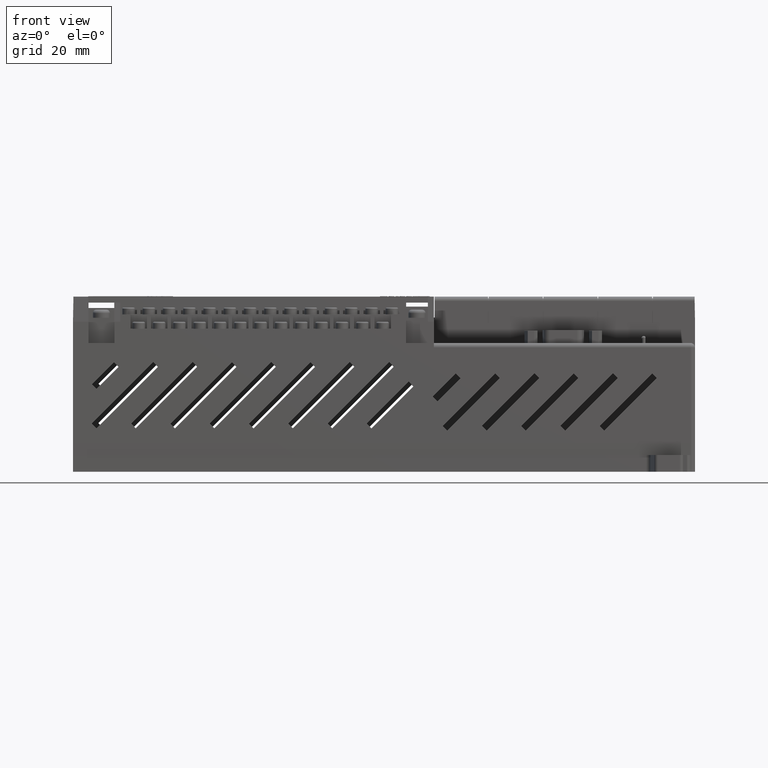
[diagram: clean part render]
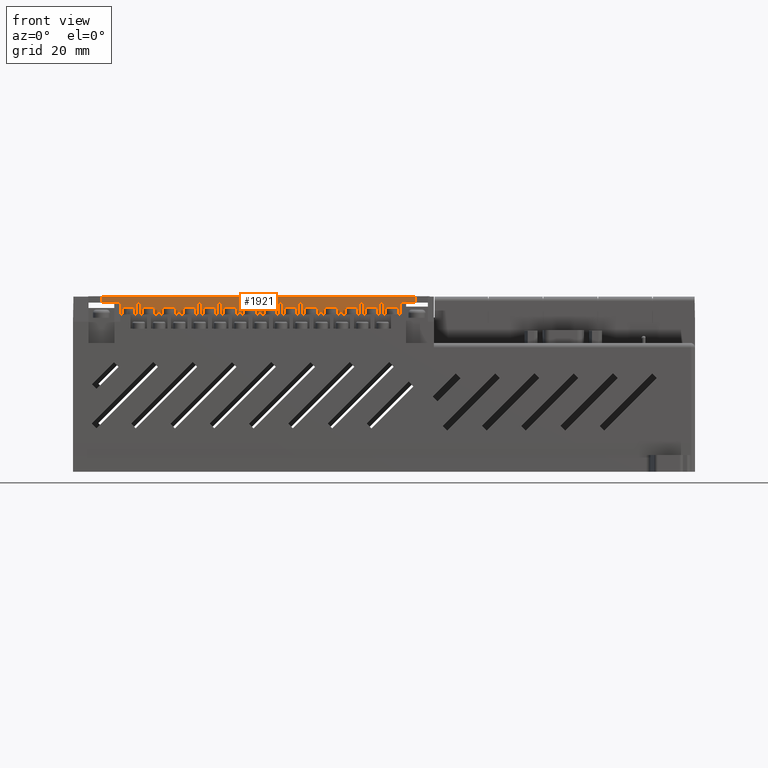
[diagram: same view with one face highlighted and labeled with its STEP entity id]
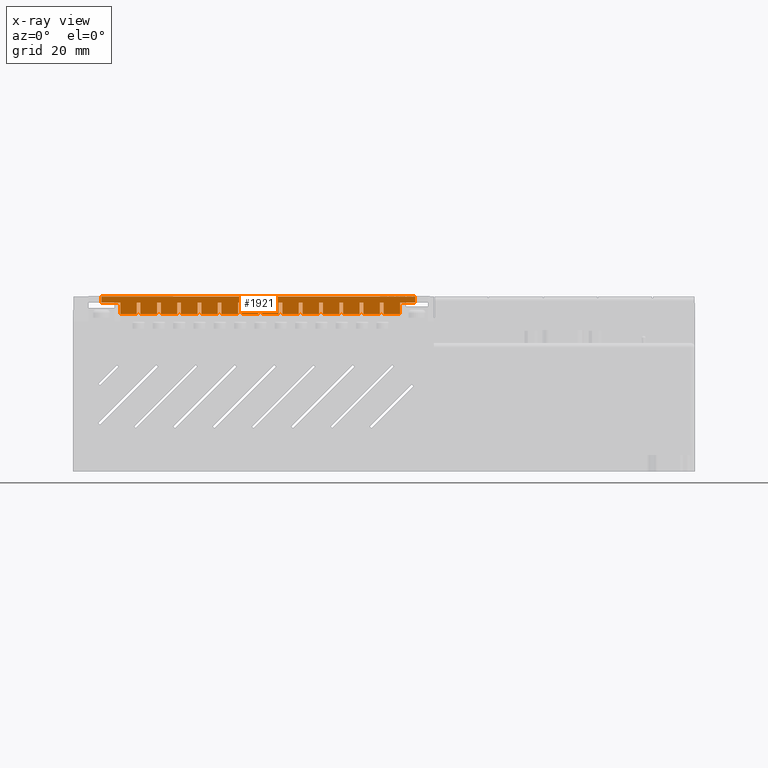
[diagram: x-ray of the same camera — body ghosted, the highlighted face saturated]
A machine part, front view. The second image highlights one B-rep face of the part: STEP entity #1921.
The next image is the same camera in x-ray: the body ghosted, the highlighted face saturated — about 0% of this face is hidden behind the body in this view.
In plain terms, the highlighted planar face has unit normal (-0, 1, 0).
Its self-contained STEP definition (entity closure, byte-faithful):
#450 = VERTEX_POINT ( 'NONE', #8870 ) ;
#454 = EDGE_CURVE ( 'NONE', #457, #450, #8869, .T. ) ;
#457 = VERTEX_POINT ( 'NONE', #8865 ) ;
#1873 = ORIENTED_EDGE ( 'NONE', *, *, #60422, .T. ) ;
#1875 = ORIENTED_EDGE ( 'NONE', *, *, #1876, .F. ) ;
#1876 = EDGE_CURVE ( 'NONE', #1878, #60275, #12679, .T. ) ;
#1878 = VERTEX_POINT ( 'NONE', #12671 ) ;
#1879 = ORIENTED_EDGE ( 'NONE', *, *, #1880, .F. ) ;
#1880 = EDGE_CURVE ( 'NONE', #1882, #1878, #12669, .T. ) ;
#1882 = VERTEX_POINT ( 'NONE', #12793 ) ;
#1883 = EDGE_CURVE ( 'NONE', #60700, #1884, #12792, .T. ) ;
#1884 = VERTEX_POINT ( 'NONE', #12787 ) ;
#1886 = ORIENTED_EDGE ( 'NONE', *, *, #1887, .F. ) ;
#1887 = EDGE_CURVE ( 'NONE', #1888, #1884, #12783, .T. ) ;
#1888 = VERTEX_POINT ( 'NONE', #12775 ) ;
#1890 = ORIENTED_EDGE ( 'NONE', *, *, #1891, .F. ) ;
#1891 = EDGE_CURVE ( 'NONE', #1893, #1888, #12770, .T. ) ;
#1893 = VERTEX_POINT ( 'NONE', #12762 ) ;
#1894 = ORIENTED_EDGE ( 'NONE', *, *, #1895, .T. ) ;
#1895 = EDGE_CURVE ( 'NONE', #1893, #457, #12757, .T. ) ;
#1897 = ORIENTED_EDGE ( 'NONE', *, *, #454, .T. ) ;
#1899 = ORIENTED_EDGE ( 'NONE', *, *, #1901, .F. ) ;
#1901 = EDGE_CURVE ( 'NONE', #1902, #450, #12744, .T. ) ;
#1902 = VERTEX_POINT ( 'NONE', #12868 ) ;
#1904 = ORIENTED_EDGE ( 'NONE', *, *, #2003, .F. ) ;
#1921 = ADVANCED_FACE ( 'NONE', ( #12843 ), #12933, .F. ) ;
#1925 = EDGE_LOOP ( 'NONE', ( #1927, #1932, #1933, #1886, #1890, #1894, #1897, #1899, #1904, #2005, #2008, #1873, #1875, #1879, #1980, #1982, #1983, #1988, #1995, #1998, #1999, #1961, #1969, #1972, #1974, #1977, #69047, #2077, #2082, #1945, #1949, #1952, #1953, #2049, #2054, #2060, #2061, #2070, #2024, #2027, #2028, #2034, #2039, #2042, #2044, #2144, #2010, #2013, #2015, #2021, #2126, #2130, #2131, #2136, #2140, #2142, #2216, #2096, #2106, #2111, #2116, #2120 ) ) ;
#1927 = ORIENTED_EDGE ( 'NONE', *, *, #1928, .F. ) ;
#1928 = EDGE_CURVE ( 'NONE', #61571, #1930, #12921, .T. ) ;
#1930 = VERTEX_POINT ( 'NONE', #12916 ) ;
#1932 = ORIENTED_EDGE ( 'NONE', *, *, #60789, .T. ) ;
#1933 = ORIENTED_EDGE ( 'NONE', *, *, #1883, .T. ) ;
#1943 = VERTEX_POINT ( 'NONE', #12966 ) ;
#1945 = ORIENTED_EDGE ( 'NONE', *, *, #1946, .F. ) ;
#1946 = EDGE_CURVE ( 'NONE', #1947, #1943, #12955, .T. ) ;
#1947 = VERTEX_POINT ( 'NONE', #12950 ) ;
#1949 = ORIENTED_EDGE ( 'NONE', *, *, #1950, .F. ) ;
#1950 = EDGE_CURVE ( 'NONE', #24798, #1947, #12947, .T. ) ;
#1952 = ORIENTED_EDGE ( 'NONE', *, *, #55505, .T. ) ;
#1953 = ORIENTED_EDGE ( 'NONE', *, *, #1954, .F. ) ;
#1954 = EDGE_CURVE ( 'NONE', #1956, #24869, #12937, .T. ) ;
#1956 = VERTEX_POINT ( 'NONE', #13052 ) ;
#1959 = VERTEX_POINT ( 'NONE', #13051 ) ;
#1961 = ORIENTED_EDGE ( 'NONE', *, *, #1964, .F. ) ;
#1964 = EDGE_CURVE ( 'NONE', #1967, #1959, #13048, .T. ) ;
#1967 = VERTEX_POINT ( 'NONE', #13043 ) ;
#1969 = ORIENTED_EDGE ( 'NONE', *, *, #1971, .F. ) ;
#1971 = EDGE_CURVE ( 'NONE', #60225, #1967, #13042, .T. ) ;
#1972 = ORIENTED_EDGE ( 'NONE', *, *, #60236, .T. ) ;
#1974 = ORIENTED_EDGE ( 'NONE', *, *, #1975, .F. ) ;
#1975 = EDGE_CURVE ( 'NONE', #1976, #60181, #13025, .T. ) ;
#1976 = VERTEX_POINT ( 'NONE', #13016 ) ;
#1977 = ORIENTED_EDGE ( 'NONE', *, *, #1978, .F. ) ;
#1978 = EDGE_CURVE ( 'NONE', #1979, #1976, #13011, .T. ) ;
#1979 = VERTEX_POINT ( 'NONE', #13004 ) ;
#1980 = ORIENTED_EDGE ( 'NONE', *, *, #1981, .F. ) ;
#1981 = EDGE_CURVE ( 'NONE', #60344, #1882, #13001, .T. ) ;
#1982 = ORIENTED_EDGE ( 'NONE', *, *, #60257, .T. ) ;
#1983 = ORIENTED_EDGE ( 'NONE', *, *, #1984, .F. ) ;
#1984 = EDGE_CURVE ( 'NONE', #1987, #60343, #13002, .T. ) ;
#1987 = VERTEX_POINT ( 'NONE', #13101 ) ;
#1988 = ORIENTED_EDGE ( 'NONE', *, *, #1991, .F. ) ;
#1991 = EDGE_CURVE ( 'NONE', #1993, #1987, #13096, .T. ) ;
#1993 = VERTEX_POINT ( 'NONE', #13092 ) ;
#1995 = ORIENTED_EDGE ( 'NONE', *, *, #1997, .F. ) ;
#1997 = EDGE_CURVE ( 'NONE', #60253, #1993, #13091, .T. ) ;
#1998 = ORIENTED_EDGE ( 'NONE', *, *, #60307, .T. ) ;
#1999 = ORIENTED_EDGE ( 'NONE', *, *, #2001, .F. ) ;
#2001 = EDGE_CURVE ( 'NONE', #1959, #51511, #13081, .T. ) ;
#2003 = EDGE_CURVE ( 'NONE', #2004, #1902, #13168, .T. ) ;
#2004 = VERTEX_POINT ( 'NONE', #13162 ) ;
#2005 = ORIENTED_EDGE ( 'NONE', *, *, #2007, .F. ) ;
#2007 = EDGE_CURVE ( 'NONE', #5278, #2004, #13160, .T. ) ;
#2008 = ORIENTED_EDGE ( 'NONE', *, *, #5225, .F. ) ;
#2010 = ORIENTED_EDGE ( 'NONE', *, *, #2012, .F. ) ;
#2012 = EDGE_CURVE ( 'NONE', #61657, #2151, #13148, .T. ) ;
#2013 = ORIENTED_EDGE ( 'NONE', *, *, #61741, .T. ) ;
#2015 = ORIENTED_EDGE ( 'NONE', *, *, #2018, .F. ) ;
#2018 = EDGE_CURVE ( 'NONE', #2019, #63002, #13133, .T. ) ;
#2019 = VERTEX_POINT ( 'NONE', #13126 ) ;
#2021 = ORIENTED_EDGE ( 'NONE', *, *, #2023, .F. ) ;
#2023 = EDGE_CURVE ( 'NONE', #2125, #2019, #13121, .T. ) ;
#2024 = ORIENTED_EDGE ( 'NONE', *, *, #2025, .F. ) ;
#2025 = EDGE_CURVE ( 'NONE', #61737, #2074, #13112, .T. ) ;
#2027 = ORIENTED_EDGE ( 'NONE', *, *, #61662, .T. ) ;
#2028 = ORIENTED_EDGE ( 'NONE', *, *, #2030, .F. ) ;
#2030 = EDGE_CURVE ( 'NONE', #2032, #61660, #13235, .T. ) ;
#2032 = VERTEX_POINT ( 'NONE', #13227 ) ;
#2034 = ORIENTED_EDGE ( 'NONE', *, *, #2036, .F. ) ;
#2036 = EDGE_CURVE ( 'NONE', #2037, #2032, #13225, .T. ) ;
#2037 = VERTEX_POINT ( 'NONE', #13217 ) ;
#2039 = ORIENTED_EDGE ( 'NONE', *, *, #2041, .F. ) ;
#2041 = EDGE_CURVE ( 'NONE', #61675, #2037, #13214, .T. ) ;
#2042 = ORIENTED_EDGE ( 'NONE', *, *, #61655, .T. ) ;
#2044 = ORIENTED_EDGE ( 'NONE', *, *, #2143, .F. ) ;
#2046 = VERTEX_POINT ( 'NONE', #13207 ) ;
#2049 = ORIENTED_EDGE ( 'NONE', *, *, #2051, .F. ) ;
#2051 = EDGE_CURVE ( 'NONE', #2052, #1956, #13205, .T. ) ;
#2052 = VERTEX_POINT ( 'NONE', #13197 ) ;
#2054 = ORIENTED_EDGE ( 'NONE', *, *, #2058, .F. ) ;
#2058 = EDGE_CURVE ( 'NONE', #61735, #2052, #13194, .T. ) ;
#2060 = ORIENTED_EDGE ( 'NONE', *, *, #61664, .T. ) ;
#2061 = ORIENTED_EDGE ( 'NONE', *, *, #2063, .F. ) ;
#2063 = EDGE_CURVE ( 'NONE', #2065, #61734, #13187, .T. ) ;
#2065 = VERTEX_POINT ( 'NONE', #13176 ) ;
#2070 = ORIENTED_EDGE ( 'NONE', *, *, #2072, .F. ) ;
#2072 = EDGE_CURVE ( 'NONE', #2074, #2065, #13285, .T. ) ;
#2074 = VERTEX_POINT ( 'NONE', #13280 ) ;
#2075 = EDGE_CURVE ( 'NONE', #54760, #1979, #13277, .T. ) ;
#2077 = ORIENTED_EDGE ( 'NONE', *, *, #60196, .T. ) ;
#2082 = ORIENTED_EDGE ( 'NONE', *, *, #2083, .F. ) ;
#2083 = EDGE_CURVE ( 'NONE', #1943, #60198, #13271, .T. ) ;
#2091 = EDGE_CURVE ( 'NONE', #2095, #61648, #13259, .T. ) ;
#2095 = VERTEX_POINT ( 'NONE', #13250 ) ;
#2096 = ORIENTED_EDGE ( 'NONE', *, *, #2101, .F. ) ;
#2101 = EDGE_CURVE ( 'NONE', #2103, #2095, #13246, .T. ) ;
#2103 = VERTEX_POINT ( 'NONE', #13354 ) ;
#2106 = ORIENTED_EDGE ( 'NONE', *, *, #2109, .F. ) ;
#2109 = EDGE_CURVE ( 'NONE', #61639, #2103, #13341, .T. ) ;
#2111 = ORIENTED_EDGE ( 'NONE', *, *, #61642, .T. ) ;
#2116 = ORIENTED_EDGE ( 'NONE', *, *, #2118, .F. ) ;
#2118 = EDGE_CURVE ( 'NONE', #2119, #61577, #13333, .T. ) ;
#2119 = VERTEX_POINT ( 'NONE', #13329 ) ;
#2120 = ORIENTED_EDGE ( 'NONE', *, *, #2122, .F. ) ;
#2122 = EDGE_CURVE ( 'NONE', #1930, #2119, #13325, .T. ) ;
#2125 = VERTEX_POINT ( 'NONE', #13317 ) ;
#2126 = ORIENTED_EDGE ( 'NONE', *, *, #2128, .F. ) ;
#2128 = EDGE_CURVE ( 'NONE', #62853, #2125, #13300, .T. ) ;
#2130 = ORIENTED_EDGE ( 'NONE', *, *, #62951, .T. ) ;
#2131 = ORIENTED_EDGE ( 'NONE', *, *, #2132, .F. ) ;
#2132 = EDGE_CURVE ( 'NONE', #2134, #61632, #13404, .T. ) ;
#2134 = VERTEX_POINT ( 'NONE', #13392 ) ;
#2136 = ORIENTED_EDGE ( 'NONE', *, *, #2137, .F. ) ;
#2137 = EDGE_CURVE ( 'NONE', #2139, #2134, #13382, .T. ) ;
#2139 = VERTEX_POINT ( 'NONE', #13377 ) ;
#2140 = ORIENTED_EDGE ( 'NONE', *, *, #2141, .F. ) ;
#2141 = EDGE_CURVE ( 'NONE', #61634, #2139, #13375, .T. ) ;
#2142 = ORIENTED_EDGE ( 'NONE', *, *, #61644, .T. ) ;
#2143 = EDGE_CURVE ( 'NONE', #2046, #61670, #13369, .T. ) ;
#2144 = ORIENTED_EDGE ( 'NONE', *, *, #2145, .F. ) ;
#2145 = EDGE_CURVE ( 'NONE', #2151, #2046, #13364, .T. ) ;
#2151 = VERTEX_POINT ( 'NONE', #13424 ) ;
#2216 = ORIENTED_EDGE ( 'NONE', *, *, #2091, .F. ) ;
#5225 = EDGE_CURVE ( 'NONE', #60432, #5278, #20937, .T. ) ;
#5278 = VERTEX_POINT ( 'NONE', #20955 ) ;
#8865 = CARTESIAN_POINT ( 'NONE',  ( 1.735649015748027500, 0.6820676333332449400, 5.822450000000002600 ) ) ;
#8866 = DIRECTION ( 'NONE',  ( -1.000000000000000000, 0.0000000000000000000, -3.491483361109382100E-015 ) ) ;
#8867 = VECTOR ( 'NONE', #8866, 39.37007874015748100 ) ;
#8868 = CARTESIAN_POINT ( 'NONE',  ( -3.262450984251971800, 0.6820676333332451600, 5.822449999999983900 ) ) ;
#8869 = LINE ( 'NONE', #8868, #8867 ) ;
#8870 = CARTESIAN_POINT ( 'NONE',  ( -2.847350984251971100, 0.6820676333332443800, 5.822449999999986600 ) ) ;
#12451 = VECTOR ( 'NONE', #13054, 39.37007874015748100 ) ;
#12669 = LINE ( 'NONE', #12797, #12796 ) ;
#12671 = CARTESIAN_POINT ( 'NONE',  ( -2.330350984251972100, 0.6820676333332451600, 5.734449999999987400 ) ) ;
#12674 = DIRECTION ( 'NONE',  ( 3.491483361109382100E-015, 9.379504347915534700E-016, -1.000000000000000000 ) ) ;
#12675 = VECTOR ( 'NONE', #12674, 39.37007874015748100 ) ;
#12677 = CARTESIAN_POINT ( 'NONE',  ( -2.330350984251973400, 0.6820676333332449400, 5.999335771198235400 ) ) ;
#12679 = LINE ( 'NONE', #12677, #12675 ) ;
#12739 = DIRECTION ( 'NONE',  ( -3.491483361109382100E-015, 1.309421820693253000E-016, 1.000000000000000000 ) ) ;
#12741 = VECTOR ( 'NONE', #12739, 39.37007874015748100 ) ;
#12743 = CARTESIAN_POINT ( 'NONE',  ( -2.847350984251971100, 0.6820676333332443800, 5.734449999999986500 ) ) ;
#12744 = LINE ( 'NONE', #12743, #12741 ) ;
#12752 = DIRECTION ( 'NONE',  ( -3.491483361109382100E-015, 1.309421820693253000E-016, 1.000000000000000000 ) ) ;
#12753 = VECTOR ( 'NONE', #12752, 39.37007874015748100 ) ;
#12755 = CARTESIAN_POINT ( 'NONE',  ( 1.735649015748027500, 0.6820676333332449400, 5.734450000000003400 ) ) ;
#12757 = LINE ( 'NONE', #12755, #12753 ) ;
#12762 = CARTESIAN_POINT ( 'NONE',  ( 1.735649015748027500, 0.6820676333332449400, 5.734450000000003400 ) ) ;
#12765 = DIRECTION ( 'NONE',  ( -1.000000000000000000, -1.192165827477313600E-016, -3.491483361109382100E-015 ) ) ;
#12766 = VECTOR ( 'NONE', #12765, 39.37007874015748100 ) ;
#12768 = CARTESIAN_POINT ( 'NONE',  ( 1.735649015748027500, 0.6820676333332449400, 5.734450000000003400 ) ) ;
#12770 = LINE ( 'NONE', #12768, #12766 ) ;
#12775 = CARTESIAN_POINT ( 'NONE',  ( 1.605649015748028100, 0.6820676333332449400, 5.734450000000001600 ) ) ;
#12778 = DIRECTION ( 'NONE',  ( -1.000000000000000000, -1.192165827477313600E-016, -3.491483361109382100E-015 ) ) ;
#12779 = VECTOR ( 'NONE', #12778, 39.37007874015748100 ) ;
#12781 = CARTESIAN_POINT ( 'NONE',  ( 1.735649015748027500, 0.6820676333332449400, 5.734450000000003400 ) ) ;
#12783 = LINE ( 'NONE', #12781, #12779 ) ;
#12787 = CARTESIAN_POINT ( 'NONE',  ( 1.517649015748027800, 0.6820676333332451600, 5.734450000000000700 ) ) ;
#12789 = DIRECTION ( 'NONE',  ( -3.491483361109382100E-015, -9.379504347915534700E-016, 1.000000000000000000 ) ) ;
#12790 = VECTOR ( 'NONE', #12789, 39.37007874015748100 ) ;
#12791 = CARTESIAN_POINT ( 'NONE',  ( 1.517649015748027100, 0.6820676333332449400, 5.999335771198248700 ) ) ;
#12792 = LINE ( 'NONE', #12791, #12790 ) ;
#12793 = CARTESIAN_POINT ( 'NONE',  ( -2.275350984251971900, 0.6820676333332451600, 5.734449999999987400 ) ) ;
#12795 = DIRECTION ( 'NONE',  ( -1.000000000000000000, 0.0000000000000000000, -3.491483361109382100E-015 ) ) ;
#12796 = VECTOR ( 'NONE', #12795, 39.37007874015748100 ) ;
#12797 = CARTESIAN_POINT ( 'NONE',  ( -2.571350984251972200, 0.6820676333332451600, 5.734449999999985600 ) ) ;
#12843 = FACE_OUTER_BOUND ( 'NONE', #1925, .T. ) ;
#12868 = CARTESIAN_POINT ( 'NONE',  ( -2.847350984251971100, 0.6820676333332443800, 5.734449999999986500 ) ) ;
#12916 = CARTESIAN_POINT ( 'NONE',  ( 1.276649015748027900, 0.6820676333332451600, 5.734449999999999800 ) ) ;
#12918 = DIRECTION ( 'NONE',  ( -3.491483361109382100E-015, -9.379504347915534700E-016, 1.000000000000000000 ) ) ;
#12919 = VECTOR ( 'NONE', #12918, 39.37007874015748100 ) ;
#12920 = CARTESIAN_POINT ( 'NONE',  ( 1.276649015748027200, 0.6820676333332449400, 5.999335771198246900 ) ) ;
#12921 = LINE ( 'NONE', #12920, #12919 ) ;
#12922 = DIRECTION ( 'NONE',  ( 3.491483361109382100E-015, 9.379504347915534700E-016, -1.000000000000000000 ) ) ;
#12923 = DIRECTION ( 'NONE',  ( -3.274838336620019200E-030, 1.000000000000000000, 9.379504347915534700E-016 ) ) ;
#12924 = CARTESIAN_POINT ( 'NONE',  ( -2.571350984251973500, 0.6820676333332449400, 5.999335771198232700 ) ) ;
#12926 = AXIS2_PLACEMENT_3D ( 'NONE', #12924, #12923, #12922 ) ;
#12933 = PLANE ( 'NONE',  #12926 ) ;
#12936 = CARTESIAN_POINT ( 'NONE',  ( -0.8503509842519727500, 0.6820676333332449400, 5.999335771198239800 ) ) ;
#12937 = LINE ( 'NONE', #12936, #12451 ) ;
#12944 = DIRECTION ( 'NONE',  ( -3.491483361109382100E-015, -9.379504347915534700E-016, 1.000000000000000000 ) ) ;
#12945 = VECTOR ( 'NONE', #12944, 39.37007874015748100 ) ;
#12946 = CARTESIAN_POINT ( 'NONE',  ( -1.091350984251972600, 0.6820676333332449400, 5.999335771198239800 ) ) ;
#12947 = LINE ( 'NONE', #12946, #12945 ) ;
#12950 = CARTESIAN_POINT ( 'NONE',  ( -1.091350984251971500, 0.6820676333332451600, 5.734449999999991800 ) ) ;
#12952 = DIRECTION ( 'NONE',  ( -1.000000000000000000, 0.0000000000000000000, -3.491483361109382100E-015 ) ) ;
#12953 = VECTOR ( 'NONE', #12952, 39.37007874015748100 ) ;
#12954 = CARTESIAN_POINT ( 'NONE',  ( -2.571350984251972200, 0.6820676333332451600, 5.734449999999985600 ) ) ;
#12955 = LINE ( 'NONE', #12954, #12953 ) ;
#12966 = CARTESIAN_POINT ( 'NONE',  ( -1.146350984251971900, 0.6820676333332451600, 5.734449999999990900 ) ) ;
#12997 = DIRECTION ( 'NONE',  ( -3.491483361109382100E-015, -9.379504347915534700E-016, 1.000000000000000000 ) ) ;
#12998 = VECTOR ( 'NONE', #12997, 39.37007874015748100 ) ;
#13000 = CARTESIAN_POINT ( 'NONE',  ( -2.275350984251972800, 0.6820676333332449400, 5.999335771198235400 ) ) ;
#13001 = LINE ( 'NONE', #13000, #12998 ) ;
#13002 = LINE ( 'NONE', #13107, #13105 ) ;
#13004 = CARTESIAN_POINT ( 'NONE',  ( -1.387350984251972000, 0.6820676333332451600, 5.734449999999990100 ) ) ;
#13006 = DIRECTION ( 'NONE',  ( -1.000000000000000000, 0.0000000000000000000, -3.491483361109382100E-015 ) ) ;
#13007 = VECTOR ( 'NONE', #13006, 39.37007874015748100 ) ;
#13009 = CARTESIAN_POINT ( 'NONE',  ( -2.571350984251972200, 0.6820676333332451600, 5.734449999999985600 ) ) ;
#13011 = LINE ( 'NONE', #13009, #13007 ) ;
#13016 = CARTESIAN_POINT ( 'NONE',  ( -1.442350984251972400, 0.6820676333332451600, 5.734449999999990100 ) ) ;
#13019 = DIRECTION ( 'NONE',  ( 3.491483361109382100E-015, 9.379504347915534700E-016, -1.000000000000000000 ) ) ;
#13020 = VECTOR ( 'NONE', #13019, 39.37007874015748100 ) ;
#13023 = CARTESIAN_POINT ( 'NONE',  ( -1.442350984251973500, 0.6820676333332449400, 5.999335771198237100 ) ) ;
#13025 = LINE ( 'NONE', #13023, #13020 ) ;
#13038 = DIRECTION ( 'NONE',  ( -3.491483361109382100E-015, -9.379504347915534700E-016, 1.000000000000000000 ) ) ;
#13039 = VECTOR ( 'NONE', #13038, 39.37007874015748100 ) ;
#13041 = CARTESIAN_POINT ( 'NONE',  ( -1.683350984251973400, 0.6820676333332449400, 5.999335771198237100 ) ) ;
#13042 = LINE ( 'NONE', #13041, #13039 ) ;
#13043 = CARTESIAN_POINT ( 'NONE',  ( -1.683350984251972300, 0.6820676333332451600, 5.734449999999990100 ) ) ;
#13045 = DIRECTION ( 'NONE',  ( -1.000000000000000000, 0.0000000000000000000, -3.491483361109382100E-015 ) ) ;
#13046 = VECTOR ( 'NONE', #13045, 39.37007874015748100 ) ;
#13047 = CARTESIAN_POINT ( 'NONE',  ( -2.571350984251972200, 0.6820676333332451600, 5.734449999999985600 ) ) ;
#13048 = LINE ( 'NONE', #13047, #13046 ) ;
#13051 = CARTESIAN_POINT ( 'NONE',  ( -1.738350984251972700, 0.6820676333332451600, 5.734449999999990100 ) ) ;
#13052 = CARTESIAN_POINT ( 'NONE',  ( -0.8503509842519716400, 0.6820676333332451600, 5.734449999999991800 ) ) ;
#13054 = DIRECTION ( 'NONE',  ( 3.491483361109382100E-015, 9.379504347915534700E-016, -1.000000000000000000 ) ) ;
#13076 = DIRECTION ( 'NONE',  ( 3.491483361109382100E-015, 9.379504347915534700E-016, -1.000000000000000000 ) ) ;
#13077 = VECTOR ( 'NONE', #13076, 39.37007874015748100 ) ;
#13080 = CARTESIAN_POINT ( 'NONE',  ( -1.738350984251973800, 0.6820676333332449400, 5.999335771198237100 ) ) ;
#13081 = LINE ( 'NONE', #13080, #13077 ) ;
#13086 = DIRECTION ( 'NONE',  ( -3.491483361109382100E-015, -9.379504347915534700E-016, 1.000000000000000000 ) ) ;
#13088 = VECTOR ( 'NONE', #13086, 39.37007874015748100 ) ;
#13090 = CARTESIAN_POINT ( 'NONE',  ( -1.979350984251972800, 0.6820676333332449400, 5.999335771198235400 ) ) ;
#13091 = LINE ( 'NONE', #13090, #13088 ) ;
#13092 = CARTESIAN_POINT ( 'NONE',  ( -1.979350984251971600, 0.6820676333332451600, 5.734449999999987400 ) ) ;
#13093 = DIRECTION ( 'NONE',  ( -1.000000000000000000, 0.0000000000000000000, -3.491483361109382100E-015 ) ) ;
#13094 = VECTOR ( 'NONE', #13093, 39.37007874015748100 ) ;
#13095 = CARTESIAN_POINT ( 'NONE',  ( -2.571350984251972200, 0.6820676333332451600, 5.734449999999985600 ) ) ;
#13096 = LINE ( 'NONE', #13095, #13094 ) ;
#13101 = CARTESIAN_POINT ( 'NONE',  ( -2.034350984251971800, 0.6820676333332451600, 5.734449999999987400 ) ) ;
#13103 = DIRECTION ( 'NONE',  ( 3.491483361109382100E-015, 9.379504347915534700E-016, -1.000000000000000000 ) ) ;
#13105 = VECTOR ( 'NONE', #13103, 39.37007874015748100 ) ;
#13107 = CARTESIAN_POINT ( 'NONE',  ( -2.034350984251973100, 0.6820676333332449400, 5.999335771198235400 ) ) ;
#13110 = CARTESIAN_POINT ( 'NONE',  ( -0.4993509842519731600, 0.6820676333332449400, 5.999335771198241600 ) ) ;
#13112 = LINE ( 'NONE', #13110, #13238 ) ;
#13116 = DIRECTION ( 'NONE',  ( -1.000000000000000000, 0.0000000000000000000, -3.491483361109382100E-015 ) ) ;
#13117 = VECTOR ( 'NONE', #13116, 39.37007874015748100 ) ;
#13119 = CARTESIAN_POINT ( 'NONE',  ( -2.571350984251972200, 0.6820676333332451600, 5.734449999999985600 ) ) ;
#13121 = LINE ( 'NONE', #13119, #13117 ) ;
#13126 = CARTESIAN_POINT ( 'NONE',  ( 0.3336490157480275200, 0.6820676333332451600, 5.734449999999996300 ) ) ;
#13129 = DIRECTION ( 'NONE',  ( 3.491483361109382100E-015, 9.379504347915534700E-016, -1.000000000000000000 ) ) ;
#13131 = VECTOR ( 'NONE', #13129, 39.37007874015748100 ) ;
#13132 = CARTESIAN_POINT ( 'NONE',  ( 0.3336490157480264100, 0.6820676333332449400, 5.999335771198244200 ) ) ;
#13133 = LINE ( 'NONE', #13132, #13131 ) ;
#13143 = DIRECTION ( 'NONE',  ( -3.491483361109382100E-015, -9.379504347915534700E-016, 1.000000000000000000 ) ) ;
#13145 = VECTOR ( 'NONE', #13143, 39.37007874015748100 ) ;
#13147 = CARTESIAN_POINT ( 'NONE',  ( 0.09264901574802644800, 0.6820676333332449400, 5.999335771198242500 ) ) ;
#13148 = LINE ( 'NONE', #13147, #13145 ) ;
#13156 = DIRECTION ( 'NONE',  ( -1.000000000000000000, -1.192165827477313600E-016, -3.491483361109382100E-015 ) ) ;
#13158 = VECTOR ( 'NONE', #13156, 39.37007874015748100 ) ;
#13159 = CARTESIAN_POINT ( 'NONE',  ( 1.735649015748027500, 0.6820676333332449400, 5.734450000000003400 ) ) ;
#13160 = LINE ( 'NONE', #13159, #13158 ) ;
#13162 = CARTESIAN_POINT ( 'NONE',  ( -2.659350984251971800, 0.6820676333332443800, 5.734449999999987400 ) ) ;
#13163 = DIRECTION ( 'NONE',  ( -1.000000000000000000, -1.192165827477313600E-016, -3.491483361109382100E-015 ) ) ;
#13165 = VECTOR ( 'NONE', #13163, 39.37007874015748100 ) ;
#13167 = CARTESIAN_POINT ( 'NONE',  ( 1.735649015748027500, 0.6820676333332449400, 5.734450000000003400 ) ) ;
#13168 = LINE ( 'NONE', #13167, #13165 ) ;
#13176 = CARTESIAN_POINT ( 'NONE',  ( -0.5543509842519723800, 0.6820676333332451600, 5.734449999999993600 ) ) ;
#13181 = DIRECTION ( 'NONE',  ( 3.491483361109382100E-015, 9.379504347915534700E-016, -1.000000000000000000 ) ) ;
#13183 = VECTOR ( 'NONE', #13181, 39.37007874015748100 ) ;
#13185 = CARTESIAN_POINT ( 'NONE',  ( -0.5543509842519734900, 0.6820676333332449400, 5.999335771198240700 ) ) ;
#13187 = LINE ( 'NONE', #13185, #13183 ) ;
#13189 = DIRECTION ( 'NONE',  ( -3.491483361109382100E-015, -9.379504347915534700E-016, 1.000000000000000000 ) ) ;
#13191 = VECTOR ( 'NONE', #13189, 39.37007874015748100 ) ;
#13193 = CARTESIAN_POINT ( 'NONE',  ( -0.7953509842519734800, 0.6820676333332449400, 5.999335771198239800 ) ) ;
#13194 = LINE ( 'NONE', #13193, #13191 ) ;
#13197 = CARTESIAN_POINT ( 'NONE',  ( -0.7953509842519723700, 0.6820676333332451600, 5.734449999999991800 ) ) ;
#13200 = DIRECTION ( 'NONE',  ( -1.000000000000000000, 0.0000000000000000000, -3.491483361109382100E-015 ) ) ;
#13202 = VECTOR ( 'NONE', #13200, 39.37007874015748100 ) ;
#13204 = CARTESIAN_POINT ( 'NONE',  ( -2.571350984251972200, 0.6820676333332451600, 5.734449999999985600 ) ) ;
#13205 = LINE ( 'NONE', #13204, #13202 ) ;
#13207 = CARTESIAN_POINT ( 'NONE',  ( 0.03764901574802826500, 0.6820676333332451600, 5.734449999999995400 ) ) ;
#13209 = DIRECTION ( 'NONE',  ( -3.491483361109382100E-015, -9.379504347915534700E-016, 1.000000000000000000 ) ) ;
#13211 = VECTOR ( 'NONE', #13209, 39.37007874015748100 ) ;
#13213 = CARTESIAN_POINT ( 'NONE',  ( -0.2033509842519727900, 0.6820676333332449400, 5.999335771198241600 ) ) ;
#13214 = LINE ( 'NONE', #13213, #13211 ) ;
#13217 = CARTESIAN_POINT ( 'NONE',  ( -0.2033509842519717100, 0.6820676333332451600, 5.734449999999994500 ) ) ;
#13220 = DIRECTION ( 'NONE',  ( -1.000000000000000000, 0.0000000000000000000, -3.491483361109382100E-015 ) ) ;
#13222 = VECTOR ( 'NONE', #13220, 39.37007874015748100 ) ;
#13224 = CARTESIAN_POINT ( 'NONE',  ( -2.571350984251972200, 0.6820676333332451600, 5.734449999999985600 ) ) ;
#13225 = LINE ( 'NONE', #13224, #13222 ) ;
#13227 = CARTESIAN_POINT ( 'NONE',  ( -0.2583509842519720600, 0.6820676333332451600, 5.734449999999994500 ) ) ;
#13229 = DIRECTION ( 'NONE',  ( 3.491483361109382100E-015, 9.379504347915534700E-016, -1.000000000000000000 ) ) ;
#13231 = VECTOR ( 'NONE', #13229, 39.37007874015748100 ) ;
#13233 = CARTESIAN_POINT ( 'NONE',  ( -0.2583509842519731700, 0.6820676333332449400, 5.999335771198241600 ) ) ;
#13235 = LINE ( 'NONE', #13233, #13231 ) ;
#13237 = DIRECTION ( 'NONE',  ( -3.491483361109382100E-015, -9.379504347915534700E-016, 1.000000000000000000 ) ) ;
#13238 = VECTOR ( 'NONE', #13237, 39.37007874015748100 ) ;
#13242 = DIRECTION ( 'NONE',  ( -1.000000000000000000, 0.0000000000000000000, -3.491483361109382100E-015 ) ) ;
#13244 = VECTOR ( 'NONE', #13242, 39.37007874015748100 ) ;
#13245 = CARTESIAN_POINT ( 'NONE',  ( -2.571350984251972200, 0.6820676333332451600, 5.734449999999985600 ) ) ;
#13246 = LINE ( 'NONE', #13245, #13244 ) ;
#13250 = CARTESIAN_POINT ( 'NONE',  ( 0.9256490157480276000, 0.6820676333332451600, 5.734449999999998900 ) ) ;
#13255 = DIRECTION ( 'NONE',  ( 3.491483361109382100E-015, 9.379504347915534700E-016, -1.000000000000000000 ) ) ;
#13257 = VECTOR ( 'NONE', #13255, 39.37007874015748100 ) ;
#13258 = CARTESIAN_POINT ( 'NONE',  ( 0.9256490157480270500, 0.6820676333332449400, 5.999335771198246000 ) ) ;
#13259 = LINE ( 'NONE', #13258, #13257 ) ;
#13267 = DIRECTION ( 'NONE',  ( 3.491483361109382100E-015, 9.379504347915534700E-016, -1.000000000000000000 ) ) ;
#13268 = VECTOR ( 'NONE', #13267, 39.37007874015748100 ) ;
#13270 = CARTESIAN_POINT ( 'NONE',  ( -1.146350984251973000, 0.6820676333332449400, 5.999335771198238000 ) ) ;
#13271 = LINE ( 'NONE', #13270, #13268 ) ;
#13273 = DIRECTION ( 'NONE',  ( -3.491483361109382100E-015, -9.379504347915534700E-016, 1.000000000000000000 ) ) ;
#13274 = VECTOR ( 'NONE', #13273, 39.37007874015748100 ) ;
#13276 = CARTESIAN_POINT ( 'NONE',  ( -1.387350984251973100, 0.6820676333332449400, 5.999335771198237100 ) ) ;
#13277 = LINE ( 'NONE', #13276, #13274 ) ;
#13280 = CARTESIAN_POINT ( 'NONE',  ( -0.4993509842519720500, 0.6820676333332451600, 5.734449999999994500 ) ) ;
#13281 = DIRECTION ( 'NONE',  ( -1.000000000000000000, 0.0000000000000000000, -3.491483361109382100E-015 ) ) ;
#13282 = VECTOR ( 'NONE', #13281, 39.37007874015748100 ) ;
#13284 = CARTESIAN_POINT ( 'NONE',  ( -2.571350984251972200, 0.6820676333332451600, 5.734449999999985600 ) ) ;
#13285 = LINE ( 'NONE', #13284, #13282 ) ;
#13295 = DIRECTION ( 'NONE',  ( -3.491483361109382100E-015, -9.379504347915534700E-016, 1.000000000000000000 ) ) ;
#13297 = VECTOR ( 'NONE', #13295, 39.37007874015748100 ) ;
#13298 = CARTESIAN_POINT ( 'NONE',  ( 0.3886490157480267900, 0.6820676333332449400, 5.999335771198244200 ) ) ;
#13300 = LINE ( 'NONE', #13298, #13297 ) ;
#13317 = CARTESIAN_POINT ( 'NONE',  ( 0.3886490157480279000, 0.6820676333332451600, 5.734449999999996300 ) ) ;
#13320 = DIRECTION ( 'NONE',  ( -1.000000000000000000, 0.0000000000000000000, -3.491483361109382100E-015 ) ) ;
#13321 = VECTOR ( 'NONE', #13320, 39.37007874015748100 ) ;
#13323 = CARTESIAN_POINT ( 'NONE',  ( -2.571350984251972200, 0.6820676333332451600, 5.734449999999985600 ) ) ;
#13325 = LINE ( 'NONE', #13323, #13321 ) ;
#13329 = CARTESIAN_POINT ( 'NONE',  ( 1.221649015748027500, 0.6820676333332451600, 5.734449999999999800 ) ) ;
#13330 = DIRECTION ( 'NONE',  ( 3.491483361109382100E-015, 9.379504347915534700E-016, -1.000000000000000000 ) ) ;
#13331 = VECTOR ( 'NONE', #13330, 39.37007874015748100 ) ;
#13332 = CARTESIAN_POINT ( 'NONE',  ( 1.221649015748026900, 0.6820676333332449400, 5.999335771198246900 ) ) ;
#13333 = LINE ( 'NONE', #13332, #13331 ) ;
#13338 = DIRECTION ( 'NONE',  ( -3.491483361109382100E-015, -9.379504347915534700E-016, 1.000000000000000000 ) ) ;
#13339 = VECTOR ( 'NONE', #13338, 39.37007874015748100 ) ;
#13340 = CARTESIAN_POINT ( 'NONE',  ( 0.9806490157480274300, 0.6820676333332449400, 5.999335771198246000 ) ) ;
#13341 = LINE ( 'NONE', #13340, #13339 ) ;
#13354 = CARTESIAN_POINT ( 'NONE',  ( 0.9806490157480279900, 0.6820676333332451600, 5.734449999999998900 ) ) ;
#13359 = DIRECTION ( 'NONE',  ( -1.000000000000000000, 0.0000000000000000000, -3.491483361109382100E-015 ) ) ;
#13360 = VECTOR ( 'NONE', #13359, 39.37007874015748100 ) ;
#13362 = CARTESIAN_POINT ( 'NONE',  ( -2.571350984251972200, 0.6820676333332451600, 5.734449999999985600 ) ) ;
#13364 = LINE ( 'NONE', #13362, #13360 ) ;
#13366 = DIRECTION ( 'NONE',  ( 3.491483361109382100E-015, 9.379504347915534700E-016, -1.000000000000000000 ) ) ;
#13367 = VECTOR ( 'NONE', #13366, 39.37007874015748100 ) ;
#13368 = CARTESIAN_POINT ( 'NONE',  ( 0.03764901574802716900, 0.6820676333332449400, 5.999335771198242500 ) ) ;
#13369 = LINE ( 'NONE', #13368, #13367 ) ;
#13371 = DIRECTION ( 'NONE',  ( -3.491483361109382100E-015, -9.379504347915534700E-016, 1.000000000000000000 ) ) ;
#13372 = VECTOR ( 'NONE', #13371, 39.37007874015748100 ) ;
#13373 = CARTESIAN_POINT ( 'NONE',  ( 0.6846490157480271700, 0.6820676333332449400, 5.999335771198245100 ) ) ;
#13375 = LINE ( 'NONE', #13373, #13372 ) ;
#13377 = CARTESIAN_POINT ( 'NONE',  ( 0.6846490157480281700, 0.6820676333332451600, 5.734449999999998000 ) ) ;
#13378 = DIRECTION ( 'NONE',  ( -1.000000000000000000, 0.0000000000000000000, -3.491483361109382100E-015 ) ) ;
#13380 = VECTOR ( 'NONE', #13378, 39.37007874015748100 ) ;
#13381 = CARTESIAN_POINT ( 'NONE',  ( -2.571350984251972200, 0.6820676333332451600, 5.734449999999985600 ) ) ;
#13382 = LINE ( 'NONE', #13381, #13380 ) ;
#13392 = CARTESIAN_POINT ( 'NONE',  ( 0.6296490157480279000, 0.6820676333332451600, 5.734449999999998000 ) ) ;
#13395 = DIRECTION ( 'NONE',  ( 3.491483361109382100E-015, 9.379504347915534700E-016, -1.000000000000000000 ) ) ;
#13397 = VECTOR ( 'NONE', #13395, 39.37007874015748100 ) ;
#13400 = CARTESIAN_POINT ( 'NONE',  ( 0.6296490157480267900, 0.6820676333332449400, 5.999335771198245100 ) ) ;
#13404 = LINE ( 'NONE', #13400, #13397 ) ;
#13424 = CARTESIAN_POINT ( 'NONE',  ( 0.09264901574802754400, 0.6820676333332451600, 5.734449999999995400 ) ) ;
#20934 = DIRECTION ( 'NONE',  ( -3.491483361109382100E-015, -9.379504347915534700E-016, 1.000000000000000000 ) ) ;
#20935 = VECTOR ( 'NONE', #20934, 39.37007874015748100 ) ;
#20936 = CARTESIAN_POINT ( 'NONE',  ( -2.571350984251973500, 0.6820676333332449400, 5.999335771198232700 ) ) ;
#20937 = LINE ( 'NONE', #20936, #20935 ) ;
#20955 = CARTESIAN_POINT ( 'NONE',  ( -2.571350984251972200, 0.6820676333332443800, 5.734449999999987400 ) ) ;
#24798 = VERTEX_POINT ( 'NONE', #37550 ) ;
#24869 = VERTEX_POINT ( 'NONE', #38073 ) ;
#37550 = CARTESIAN_POINT ( 'NONE',  ( -1.091350984251970600, 0.6820676333332452700, 5.562449999999992100 ) ) ;
#38073 = CARTESIAN_POINT ( 'NONE',  ( -0.8503509842519705300, 0.6820676333332452700, 5.562449999999992100 ) ) ;
#41911 = CARTESIAN_POINT ( 'NONE',  ( -1.738350984251971500, 0.6820676333332452700, 5.562449999999988600 ) ) ;
#42126 = DIRECTION ( 'NONE',  ( 1.000000000000000000, -0.0000000000000000000, 3.491483361109382100E-015 ) ) ;
#42127 = VECTOR ( 'NONE', #42126, 39.37007874015748100 ) ;
#42129 = CARTESIAN_POINT ( 'NONE',  ( -2.571350984251971300, 0.6820676333332452700, 5.562449999999986800 ) ) ;
#42130 = LINE ( 'NONE', #42129, #42127 ) ;
#42139 = CARTESIAN_POINT ( 'NONE',  ( -1.387350984251970900, 0.6820676333332452700, 5.562449999999989500 ) ) ;
#43314 = CARTESIAN_POINT ( 'NONE',  ( -1.442350984251971300, 0.6820676333332452700, 5.562449999999989500 ) ) ;
#43398 = CARTESIAN_POINT ( 'NONE',  ( -1.146350984251971000, 0.6820676333332452700, 5.562449999999991200 ) ) ;
#43403 = DIRECTION ( 'NONE',  ( 1.000000000000000000, -0.0000000000000000000, 3.491483361109382100E-015 ) ) ;
#43404 = VECTOR ( 'NONE', #43403, 39.37007874015748100 ) ;
#43405 = CARTESIAN_POINT ( 'NONE',  ( -2.571350984251971300, 0.6820676333332452700, 5.562449999999986800 ) ) ;
#43406 = LINE ( 'NONE', #43405, #43404 ) ;
#43475 = CARTESIAN_POINT ( 'NONE',  ( -1.683350984251971200, 0.6820676333332452700, 5.562449999999989500 ) ) ;
#43529 = CARTESIAN_POINT ( 'NONE',  ( -1.979350984251970500, 0.6820676333332452700, 5.562449999999987700 ) ) ;
#43546 = DIRECTION ( 'NONE',  ( 1.000000000000000000, -0.0000000000000000000, 3.491483361109382100E-015 ) ) ;
#43547 = VECTOR ( 'NONE', #43546, 39.37007874015748100 ) ;
#43548 = CARTESIAN_POINT ( 'NONE',  ( -2.571350984251971300, 0.6820676333332452700, 5.562449999999986800 ) ) ;
#43549 = LINE ( 'NONE', #43548, #43547 ) ;
#43565 = DIRECTION ( 'NONE',  ( 1.000000000000000000, -0.0000000000000000000, 3.491483361109382100E-015 ) ) ;
#43566 = VECTOR ( 'NONE', #43565, 39.37007874015748100 ) ;
#43567 = CARTESIAN_POINT ( 'NONE',  ( -2.571350984251971300, 0.6820676333332452700, 5.562449999999986800 ) ) ;
#43568 = LINE ( 'NONE', #43567, #43566 ) ;
#43656 = CARTESIAN_POINT ( 'NONE',  ( -2.330350984251971200, 0.6820676333332452700, 5.562449999999987700 ) ) ;
#43743 = DIRECTION ( 'NONE',  ( 1.000000000000000000, -0.0000000000000000000, 3.491483361109382100E-015 ) ) ;
#43744 = VECTOR ( 'NONE', #43743, 39.37007874015748100 ) ;
#43745 = CARTESIAN_POINT ( 'NONE',  ( -2.571350984251971300, 0.6820676333332452700, 5.562449999999986800 ) ) ;
#43746 = LINE ( 'NONE', #43745, #43744 ) ;
#43832 = CARTESIAN_POINT ( 'NONE',  ( -2.034350984251970900, 0.6820676333332452700, 5.562449999999987700 ) ) ;
#43882 = CARTESIAN_POINT ( 'NONE',  ( -2.275350984251971000, 0.6820676333332452700, 5.562449999999987700 ) ) ;
#44171 = DIRECTION ( 'NONE',  ( 1.000000000000000000, -0.0000000000000000000, 3.491483361109382100E-015 ) ) ;
#44172 = VECTOR ( 'NONE', #44171, 39.37007874015748100 ) ;
#44173 = CARTESIAN_POINT ( 'NONE',  ( -2.571350984251971300, 0.6820676333332452700, 5.562449999999986800 ) ) ;
#44174 = LINE ( 'NONE', #44173, #44172 ) ;
#44193 = CARTESIAN_POINT ( 'NONE',  ( -2.571350984251971300, 0.6820676333332452700, 5.562449999999986800 ) ) ;
#45206 = CARTESIAN_POINT ( 'NONE',  ( 1.517649015748028200, 0.6820676333332452700, 5.562450000000001000 ) ) ;
#45455 = DIRECTION ( 'NONE',  ( 1.000000000000000000, -0.0000000000000000000, 3.491483361109382100E-015 ) ) ;
#45456 = VECTOR ( 'NONE', #45455, 39.37007874015748100 ) ;
#45457 = CARTESIAN_POINT ( 'NONE',  ( -2.571350984251971300, 0.6820676333332452700, 5.562449999999986800 ) ) ;
#45458 = LINE ( 'NONE', #45457, #45456 ) ;
#48498 = CARTESIAN_POINT ( 'NONE',  ( 1.276649015748028400, 0.6820676333332452700, 5.562449999999999200 ) ) ;
#48546 = CARTESIAN_POINT ( 'NONE',  ( 1.221649015748028000, 0.6820676333332452700, 5.562449999999999200 ) ) ;
#48609 = CARTESIAN_POINT ( 'NONE',  ( 0.6846490157480292800, 0.6820676333332452700, 5.562449999999997500 ) ) ;
#48610 = CARTESIAN_POINT ( 'NONE',  ( 0.6296490157480289000, 0.6820676333332452700, 5.562449999999997500 ) ) ;
#48637 = CARTESIAN_POINT ( 'NONE',  ( 0.09264901574802864000, 0.6820676333332452700, 5.562449999999994800 ) ) ;
#48638 = DIRECTION ( 'NONE',  ( 1.000000000000000000, -0.0000000000000000000, 3.491483361109382100E-015 ) ) ;
#48639 = VECTOR ( 'NONE', #48638, 39.37007874015748100 ) ;
#48640 = CARTESIAN_POINT ( 'NONE',  ( -2.571350984251971300, 0.6820676333332452700, 5.562449999999986800 ) ) ;
#48641 = LINE ( 'NONE', #48640, #48639 ) ;
#48653 = CARTESIAN_POINT ( 'NONE',  ( 0.9256490157480281600, 0.6820676333332452700, 5.562449999999998300 ) ) ;
#48655 = DIRECTION ( 'NONE',  ( 1.000000000000000000, -0.0000000000000000000, 3.491483361109382100E-015 ) ) ;
#48656 = VECTOR ( 'NONE', #48655, 39.37007874015748100 ) ;
#48657 = CARTESIAN_POINT ( 'NONE',  ( -2.571350984251971300, 0.6820676333332452700, 5.562449999999986800 ) ) ;
#48658 = LINE ( 'NONE', #48657, #48656 ) ;
#48663 = DIRECTION ( 'NONE',  ( 1.000000000000000000, -0.0000000000000000000, 3.491483361109382100E-015 ) ) ;
#48664 = VECTOR ( 'NONE', #48663, 39.37007874015748100 ) ;
#48665 = CARTESIAN_POINT ( 'NONE',  ( -2.571350984251971300, 0.6820676333332452700, 5.562449999999986800 ) ) ;
#48666 = LINE ( 'NONE', #48665, #48664 ) ;
#48667 = CARTESIAN_POINT ( 'NONE',  ( 0.9806490157480285400, 0.6820676333332452700, 5.562449999999998300 ) ) ;
#48677 = CARTESIAN_POINT ( 'NONE',  ( 0.03764901574802935500, 0.6820676333332452700, 5.562449999999994800 ) ) ;
#48687 = DIRECTION ( 'NONE',  ( 1.000000000000000000, -0.0000000000000000000, 3.491483361109382100E-015 ) ) ;
#48688 = VECTOR ( 'NONE', #48687, 39.37007874015748100 ) ;
#48689 = CARTESIAN_POINT ( 'NONE',  ( -2.571350984251971300, 0.6820676333332452700, 5.562449999999986800 ) ) ;
#48690 = LINE ( 'NONE', #48689, #48688 ) ;
#48691 = DIRECTION ( 'NONE',  ( 1.000000000000000000, -0.0000000000000000000, 3.491483361109382100E-015 ) ) ;
#48692 = VECTOR ( 'NONE', #48691, 39.37007874015748100 ) ;
#48693 = CARTESIAN_POINT ( 'NONE',  ( -2.571350984251971300, 0.6820676333332452700, 5.562449999999986800 ) ) ;
#48694 = LINE ( 'NONE', #48693, #48692 ) ;
#48695 = CARTESIAN_POINT ( 'NONE',  ( -0.2583509842519710100, 0.6820676333332452700, 5.562449999999993900 ) ) ;
#48736 = CARTESIAN_POINT ( 'NONE',  ( -0.2033509842519706200, 0.6820676333332452700, 5.562449999999993900 ) ) ;
#48850 = VECTOR ( 'NONE', #48903, 39.37007874015748100 ) ;
#48851 = CARTESIAN_POINT ( 'NONE',  ( -2.571350984251971300, 0.6820676333332452700, 5.562449999999986800 ) ) ;
#48852 = LINE ( 'NONE', #48851, #48850 ) ;
#48858 = CARTESIAN_POINT ( 'NONE',  ( -0.4993509842519709400, 0.6820676333332452700, 5.562449999999993000 ) ) ;
#48860 = CARTESIAN_POINT ( 'NONE',  ( -0.7953509842519712600, 0.6820676333332452700, 5.562449999999992100 ) ) ;
#48861 = CARTESIAN_POINT ( 'NONE',  ( -0.5543509842519712700, 0.6820676333332452700, 5.562449999999993000 ) ) ;
#48903 = DIRECTION ( 'NONE',  ( 1.000000000000000000, -0.0000000000000000000, 3.491483361109382100E-015 ) ) ;
#51511 = VERTEX_POINT ( 'NONE', #41911 ) ;
#52502 = CARTESIAN_POINT ( 'NONE',  ( 0.3886490157480289600, 0.6820676333332452700, 5.562449999999996600 ) ) ;
#52823 = DIRECTION ( 'NONE',  ( 1.000000000000000000, -0.0000000000000000000, 3.491483361109382100E-015 ) ) ;
#52824 = VECTOR ( 'NONE', #52823, 39.37007874015748100 ) ;
#52825 = CARTESIAN_POINT ( 'NONE',  ( -2.571350984251971300, 0.6820676333332452700, 5.562449999999986800 ) ) ;
#52826 = LINE ( 'NONE', #52825, #52824 ) ;
#52916 = CARTESIAN_POINT ( 'NONE',  ( 0.3336490157480285800, 0.6820676333332452700, 5.562449999999996600 ) ) ;
#54760 = VERTEX_POINT ( 'NONE', #42139 ) ;
#55505 = EDGE_CURVE ( 'NONE', #24798, #24869, #42130, .T. ) ;
#60181 = VERTEX_POINT ( 'NONE', #43314 ) ;
#60196 = EDGE_CURVE ( 'NONE', #54760, #60198, #43406, .T. ) ;
#60198 = VERTEX_POINT ( 'NONE', #43398 ) ;
#60225 = VERTEX_POINT ( 'NONE', #43475 ) ;
#60236 = EDGE_CURVE ( 'NONE', #60225, #60181, #43549, .T. ) ;
#60253 = VERTEX_POINT ( 'NONE', #43529 ) ;
#60257 = EDGE_CURVE ( 'NONE', #60344, #60343, #43568, .T. ) ;
#60275 = VERTEX_POINT ( 'NONE', #43656 ) ;
#60307 = EDGE_CURVE ( 'NONE', #60253, #51511, #43746, .T. ) ;
#60343 = VERTEX_POINT ( 'NONE', #43832 ) ;
#60344 = VERTEX_POINT ( 'NONE', #43882 ) ;
#60422 = EDGE_CURVE ( 'NONE', #60432, #60275, #44174, .T. ) ;
#60432 = VERTEX_POINT ( 'NONE', #44193 ) ;
#60700 = VERTEX_POINT ( 'NONE', #45206 ) ;
#60789 = EDGE_CURVE ( 'NONE', #61571, #60700, #45458, .T. ) ;
#61571 = VERTEX_POINT ( 'NONE', #48498 ) ;
#61577 = VERTEX_POINT ( 'NONE', #48546 ) ;
#61632 = VERTEX_POINT ( 'NONE', #48610 ) ;
#61634 = VERTEX_POINT ( 'NONE', #48609 ) ;
#61639 = VERTEX_POINT ( 'NONE', #48667 ) ;
#61642 = EDGE_CURVE ( 'NONE', #61639, #61577, #48666, .T. ) ;
#61644 = EDGE_CURVE ( 'NONE', #61634, #61648, #48658, .T. ) ;
#61648 = VERTEX_POINT ( 'NONE', #48653 ) ;
#61655 = EDGE_CURVE ( 'NONE', #61675, #61670, #48641, .T. ) ;
#61657 = VERTEX_POINT ( 'NONE', #48637 ) ;
#61660 = VERTEX_POINT ( 'NONE', #48695 ) ;
#61662 = EDGE_CURVE ( 'NONE', #61737, #61660, #48694, .T. ) ;
#61664 = EDGE_CURVE ( 'NONE', #61735, #61734, #48690, .T. ) ;
#61670 = VERTEX_POINT ( 'NONE', #48677 ) ;
#61675 = VERTEX_POINT ( 'NONE', #48736 ) ;
#61734 = VERTEX_POINT ( 'NONE', #48861 ) ;
#61735 = VERTEX_POINT ( 'NONE', #48860 ) ;
#61737 = VERTEX_POINT ( 'NONE', #48858 ) ;
#61741 = EDGE_CURVE ( 'NONE', #61657, #63002, #48852, .T. ) ;
#62853 = VERTEX_POINT ( 'NONE', #52502 ) ;
#62951 = EDGE_CURVE ( 'NONE', #62853, #61632, #52826, .T. ) ;
#63002 = VERTEX_POINT ( 'NONE', #52916 ) ;
#69047 = ORIENTED_EDGE ( 'NONE', *, *, #2075, .F. ) ;